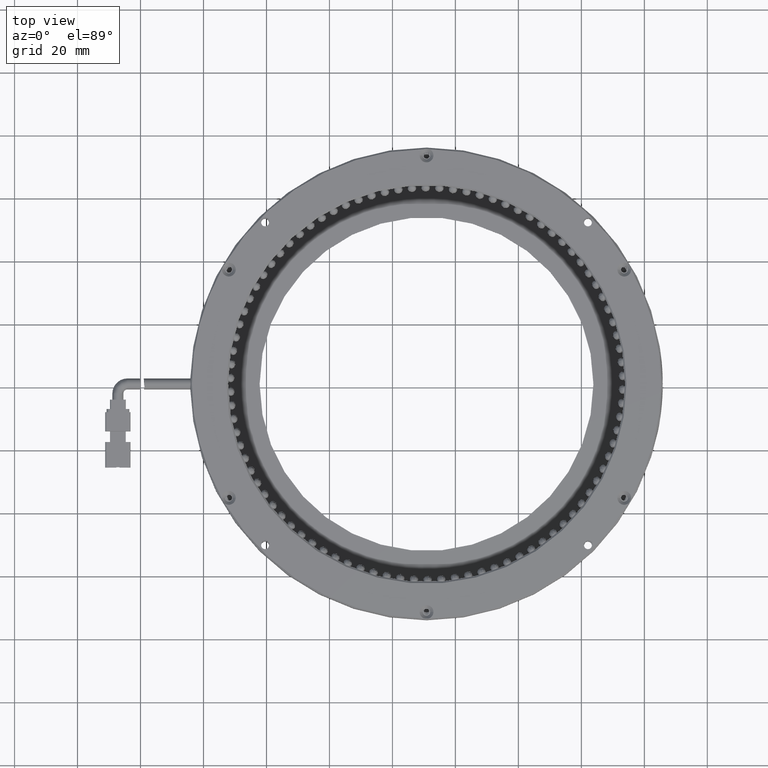
[diagram: clean part render]
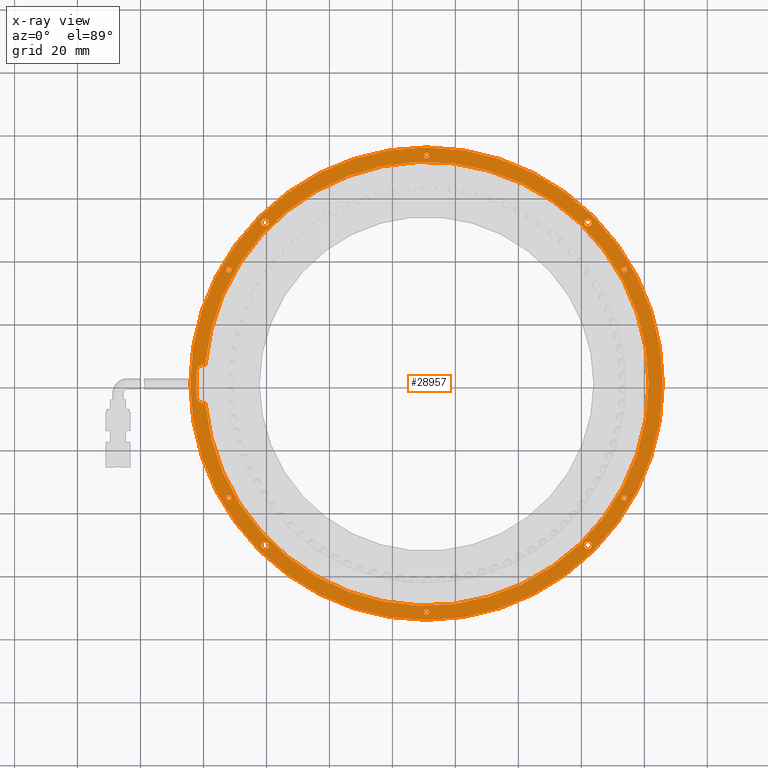
[diagram: x-ray — body ghosted, one internal face saturated and labeled with its STEP entity id]
A machine part, top view, then the same camera in x-ray: the body is ghosted and one INTERNAL B-rep face — a face not visible from any outside direction — is saturated and labeled: STEP entity #28957.
In plain terms, the highlighted planar face has unit normal (0, 0, 1).
Its self-contained STEP definition (entity closure, byte-faithful):
#242 = CARTESIAN_POINT ( 'NONE',  ( 73.60924025152871800, 37.34593908629515400, 3.499999999999937400 ) ) ;
#395 = CARTESIAN_POINT ( 'NONE',  ( 60.83764011318196200, 52.36118072231920500, 3.499999999999938700 ) ) ;
#875 = ORIENTED_EDGE ( 'NONE', *, *, #73624, .T. ) ;
#1308 = CARTESIAN_POINT ( 'NONE',  ( -41.69284315886687200, -50.16930254973072300, 3.499999999999938700 ) ) ;
#1927 = VERTEX_POINT ( 'NONE', #7664 ) ;
#2146 = DIRECTION ( 'NONE',  ( 0.0000000000000000000, 0.0000000000000000000, -1.000000000000000000 ) ) ;
#2436 = CIRCLE ( 'NONE', #72555, 0.9999999999999991100 ) ;
#2562 = DIRECTION ( 'NONE',  ( 0.0000000000000000000, 0.0000000000000000000, -1.000000000000000000 ) ) ;
#2760 = VERTEX_POINT ( 'NONE', #60874 ) ;
#3091 = FACE_BOUND ( 'NONE', #67830, .T. ) ;
#4112 = DIRECTION ( 'NONE',  ( 1.000000000000000000, 0.0000000000000000000, 0.0000000000000000000 ) ) ;
#4430 = CARTESIAN_POINT ( 'NONE',  ( 73.60924025152871800, 37.34593908629515400, 3.499999999999937400 ) ) ;
#4550 = EDGE_CURVE ( 'NONE', #16202, #41398, #28218, .T. ) ;
#4745 = VERTEX_POINT ( 'NONE', #42330 ) ;
#4763 = CIRCLE ( 'NONE', #9330, 2.000000000000001800 ) ;
#4840 = ORIENTED_EDGE ( 'NONE', *, *, #54595, .T. ) ;
#4952 = CARTESIAN_POINT ( 'NONE',  ( -41.69284315886760300, 52.36118072231883500, 3.499999999999938700 ) ) ;
#4963 = EDGE_LOOP ( 'NONE', ( #37913, #40842 ) ) ;
#5029 = FACE_BOUND ( 'NONE', #58446, .T. ) ;
#5240 = CARTESIAN_POINT ( 'NONE',  ( -39.19284315886690000, -50.16930254973072300, 3.499999999999938700 ) ) ;
#5724 = VECTOR ( 'NONE', #73314, 1000.000000000000000 ) ;
#5881 = EDGE_LOOP ( 'NONE', ( #9034, #46588 ) ) ;
#6335 = CIRCLE ( 'NONE', #38952, 1.249999999999987100 ) ;
#6372 = DIRECTION ( 'NONE',  ( 1.000000000000000000, 0.0000000000000000000, 0.0000000000000000000 ) ) ;
#6685 = CIRCLE ( 'NONE', #60077, 1.249999999999987100 ) ;
#6864 = VERTEX_POINT ( 'NONE', #46443 ) ;
#6956 = FACE_OUTER_BOUND ( 'NONE', #51454, .T. ) ;
#7664 = CARTESIAN_POINT ( 'NONE',  ( -62.17760152284265700, 4.988395143653201900, 3.499999999999937400 ) ) ;
#7688 = ORIENTED_EDGE ( 'NONE', *, *, #49355, .T. ) ;
#8373 = AXIS2_PLACEMENT_3D ( 'NONE', #29793, #72388, #35947 ) ;
#8474 = EDGE_CURVE ( 'NONE', #40038, #64313, #58484, .T. ) ;
#8633 = CARTESIAN_POINT ( 'NONE',  ( 10.82239847715786100, -71.40406091370557800, 3.499999999999937400 ) ) ;
#8886 = CARTESIAN_POINT ( 'NONE',  ( 10.82239847715735200, 1.095939086294420100, 3.499999999999937400 ) ) ;
#9025 = CARTESIAN_POINT ( 'NONE',  ( 81.32239847715736400, 1.095939086294420100, 3.499999999999937400 ) ) ;
#9034 = ORIENTED_EDGE ( 'NONE', *, *, #43669, .T. ) ;
#9330 = AXIS2_PLACEMENT_3D ( 'NONE', #30951, #73506, #37109 ) ;
#9441 = VERTEX_POINT ( 'NONE', #58798 ) ;
#9788 = AXIS2_PLACEMENT_3D ( 'NONE', #53809, #17362, #59953 ) ;
#10495 = DIRECTION ( 'NONE',  ( 1.000000000000000000, 0.0000000000000000000, 0.0000000000000000000 ) ) ;
#10811 = CARTESIAN_POINT ( 'NONE',  ( -39.19284315886763200, 52.36118072231883500, 3.499999999999938700 ) ) ;
#10985 = ORIENTED_EDGE ( 'NONE', *, *, #76837, .T. ) ;
#11159 = DIRECTION ( 'NONE',  ( 0.0000000000000000000, 0.0000000000000000000, -1.000000000000000000 ) ) ;
#11369 = AXIS2_PLACEMENT_3D ( 'NONE', #11418, #53979, #17530 ) ;
#11418 = CARTESIAN_POINT ( 'NONE',  ( 73.60924025152948500, -35.15406091370500300, 3.499999999999937400 ) ) ;
#11551 = EDGE_CURVE ( 'NONE', #4745, #43965, #6685, .T. ) ;
#11903 = AXIS2_PLACEMENT_3D ( 'NONE', #59918, #23455, #66000 ) ;
#12002 = ORIENTED_EDGE ( 'NONE', *, *, #51326, .T. ) ;
#12542 = DIRECTION ( 'NONE',  ( 0.0000000000000000000, 0.0000000000000000000, -1.000000000000000000 ) ) ;
#12600 = CARTESIAN_POINT ( 'NONE',  ( -62.17760152284264300, -3.011604856346799400, 3.499999999999937400 ) ) ;
#12740 = CARTESIAN_POINT ( 'NONE',  ( -40.44284315886688600, -50.16930254973072300, 3.499999999999938700 ) ) ;
#12984 = VERTEX_POINT ( 'NONE', #4952 ) ;
#13241 = CARTESIAN_POINT ( 'NONE',  ( 9.822398477157861400, -71.40406091370557800, 3.499999999999937400 ) ) ;
#13413 = CIRCLE ( 'NONE', #67202, 75.00000000000001400 ) ;
#14102 = CARTESIAN_POINT ( 'NONE',  ( 72.60924025152871800, 37.34593908629515400, 3.499999999999937400 ) ) ;
#14316 = CIRCLE ( 'NONE', #72203, 1.000000000000000900 ) ;
#14355 = CARTESIAN_POINT ( 'NONE',  ( 9.822398477157351600, 73.59593908629442200, 3.499999999999937400 ) ) ;
#14465 = CARTESIAN_POINT ( 'NONE',  ( -60.17760152284265700, -5.011604856346799900, 3.499999999999937400 ) ) ;
#14702 = EDGE_LOOP ( 'NONE', ( #48172, #875 ) ) ;
#14742 = DIRECTION ( 'NONE',  ( 1.000000000000000000, 0.0000000000000000000, 0.0000000000000000000 ) ) ;
#15011 = DIRECTION ( 'NONE',  ( 1.000000000000000000, 0.0000000000000000000, 0.0000000000000000000 ) ) ;
#15058 = VERTEX_POINT ( 'NONE', #36847 ) ;
#15212 = DIRECTION ( 'NONE',  ( 0.0000000000000000000, 0.0000000000000000000, -1.000000000000000000 ) ) ;
#15767 = VERTEX_POINT ( 'NONE', #51642 ) ;
#15853 = DIRECTION ( 'NONE',  ( 0.0000000000000000000, 0.0000000000000000000, -1.000000000000000000 ) ) ;
#15897 = CIRCLE ( 'NONE', #61323, 1.000000000000000900 ) ;
#16202 = VERTEX_POINT ( 'NONE', #1308 ) ;
#16246 = CARTESIAN_POINT ( 'NONE',  ( 10.82239847715735200, 1.095939086294420100, 3.499999999999937400 ) ) ;
#16734 = CARTESIAN_POINT ( 'NONE',  ( 62.08764011318267300, -50.16930254972964300, 3.499999999999938700 ) ) ;
#16890 = CARTESIAN_POINT ( 'NONE',  ( 10.82239847715735200, 1.095939086294420100, 3.499999999999937400 ) ) ;
#17362 = DIRECTION ( 'NONE',  ( 0.0000000000000000000, 0.0000000000000000000, -1.000000000000000000 ) ) ;
#17530 = DIRECTION ( 'NONE',  ( 1.000000000000000000, 0.0000000000000000000, 0.0000000000000000000 ) ) ;
#17623 = EDGE_CURVE ( 'NONE', #66327, #15058, #70197, .T. ) ;
#18307 = EDGE_LOOP ( 'NONE', ( #64291, #32755 ) ) ;
#18326 = ORIENTED_EDGE ( 'NONE', *, *, #66112, .T. ) ;
#18660 = CARTESIAN_POINT ( 'NONE',  ( 74.60924025152871800, 37.34593908629515400, 3.499999999999937400 ) ) ;
#18893 = EDGE_CURVE ( 'NONE', #12984, #34307, #78845, .T. ) ;
#18909 = DIRECTION ( 'NONE',  ( 1.000000000000000000, 0.0000000000000000000, 0.0000000000000000000 ) ) ;
#19221 = CARTESIAN_POINT ( 'NONE',  ( 62.08764011318194800, 52.36118072231920500, 3.499999999999938700 ) ) ;
#19312 = FACE_BOUND ( 'NONE', #56768, .T. ) ;
#20494 = VECTOR ( 'NONE', #53495, 1000.000000000000000 ) ;
#20681 = DIRECTION ( 'NONE',  ( 0.0000000000000000000, 0.0000000000000000000, -1.000000000000000000 ) ) ;
#20835 = EDGE_LOOP ( 'NONE', ( #33312, #46964 ) ) ;
#21215 = FACE_BOUND ( 'NONE', #50374, .T. ) ;
#21395 = CIRCLE ( 'NONE', #38529, 1.249999999999987100 ) ;
#22219 = DIRECTION ( 'NONE',  ( 0.0000000000000000000, 0.0000000000000000000, -1.000000000000000000 ) ) ;
#22268 = ORIENTED_EDGE ( 'NONE', *, *, #8474, .T. ) ;
#22382 = LINE ( 'NONE', #47394, #20494 ) ;
#22394 = DIRECTION ( 'NONE',  ( 1.000000000000000000, 0.0000000000000000000, 0.0000000000000000000 ) ) ;
#22882 = DIRECTION ( 'NONE',  ( 1.000000000000000000, 0.0000000000000000000, 0.0000000000000000000 ) ) ;
#23025 = DIRECTION ( 'NONE',  ( 1.000000000000000000, 0.0000000000000000000, -0.0000000000000000000 ) ) ;
#23045 = ORIENTED_EDGE ( 'NONE', *, *, #29507, .T. ) ;
#23455 = DIRECTION ( 'NONE',  ( 0.0000000000000000000, 0.0000000000000000000, 1.000000000000000000 ) ) ;
#23703 = EDGE_CURVE ( 'NONE', #55862, #52684, #15897, .T. ) ;
#23802 = AXIS2_PLACEMENT_3D ( 'NONE', #12740, #55326, #18909 ) ;
#24147 = DIRECTION ( 'NONE',  ( 0.0000000000000000000, 0.0000000000000000000, -1.000000000000000000 ) ) ;
#24706 = CARTESIAN_POINT ( 'NONE',  ( 74.60924025152948500, -35.15406091370500300, 3.499999999999937400 ) ) ;
#25315 = DIRECTION ( 'NONE',  ( 1.000000000000000000, 0.0000000000000000000, 0.0000000000000000000 ) ) ;
#25379 = CIRCLE ( 'NONE', #43445, 1.000000000000000900 ) ;
#25594 = CIRCLE ( 'NONE', #62780, 0.9999999999999991100 ) ;
#25666 = CIRCLE ( 'NONE', #11903, 75.00000000000001400 ) ;
#26547 = EDGE_LOOP ( 'NONE', ( #10985, #7688 ) ) ;
#26795 = CARTESIAN_POINT ( 'NONE',  ( 72.60924025152948500, -35.15406091370500300, 3.499999999999937400 ) ) ;
#28146 = CIRCLE ( 'NONE', #30666, 70.50000000000000000 ) ;
#28218 = CIRCLE ( 'NONE', #61388, 1.249999999999987100 ) ;
#28421 = EDGE_CURVE ( 'NONE', #15767, #41753, #36216, .T. ) ;
#28925 = EDGE_CURVE ( 'NONE', #52684, #55862, #71632, .T. ) ;
#28957 = ADVANCED_FACE ( 'NONE', ( #6956, #53564, #39226, #37368, #21215, #69729, #5029, #67818, #51637, #35424, #19312, #3091 ), #71419, .T. ) ;
#29507 = EDGE_CURVE ( 'NONE', #64313, #1927, #54241, .T. ) ;
#29693 = DIRECTION ( 'NONE',  ( 1.000000000000000000, 0.0000000000000000000, -0.0000000000000000000 ) ) ;
#29793 = CARTESIAN_POINT ( 'NONE',  ( 73.60924025152948500, -35.15406091370500300, 3.499999999999937400 ) ) ;
#30175 = CIRCLE ( 'NONE', #44544, 1.249999999999987100 ) ;
#30310 = CARTESIAN_POINT ( 'NONE',  ( 10.82239847715735200, 1.095939086294420100, 3.499999999999937400 ) ) ;
#30322 = EDGE_CURVE ( 'NONE', #43965, #4745, #6335, .T. ) ;
#30666 = AXIS2_PLACEMENT_3D ( 'NONE', #16246, #58831, #22394 ) ;
#30951 = CARTESIAN_POINT ( 'NONE',  ( -60.17760152284265700, 4.988395143653201900, 3.499999999999937400 ) ) ;
#31159 = AXIS2_PLACEMENT_3D ( 'NONE', #4430, #46969, #10495 ) ;
#31260 = ORIENTED_EDGE ( 'NONE', *, *, #23703, .T. ) ;
#31718 = CIRCLE ( 'NONE', #23802, 1.249999999999987100 ) ;
#32552 = AXIS2_PLACEMENT_3D ( 'NONE', #38557, #2146, #44736 ) ;
#32755 = ORIENTED_EDGE ( 'NONE', *, *, #30322, .T. ) ;
#32970 = EDGE_CURVE ( 'NONE', #2760, #54807, #25594, .T. ) ;
#33312 = ORIENTED_EDGE ( 'NONE', *, *, #59984, .T. ) ;
#33393 = CIRCLE ( 'NONE', #11369, 1.000000000000000900 ) ;
#33589 = EDGE_CURVE ( 'NONE', #74757, #65528, #28146, .T. ) ;
#33855 = EDGE_LOOP ( 'NONE', ( #18326, #42496 ) ) ;
#33864 = ORIENTED_EDGE ( 'NONE', *, *, #60349, .T. ) ;
#34236 = AXIS2_PLACEMENT_3D ( 'NONE', #52312, #15853, #58420 ) ;
#34261 = CARTESIAN_POINT ( 'NONE',  ( -51.96444329721453000, 37.34593908629427300, 3.499999999999937400 ) ) ;
#34307 = VERTEX_POINT ( 'NONE', #10811 ) ;
#34501 = EDGE_CURVE ( 'NONE', #60751, #70568, #25379, .T. ) ;
#35424 = FACE_BOUND ( 'NONE', #33855, .T. ) ;
#35471 = DIRECTION ( 'NONE',  ( 0.0000000000000000000, 0.0000000000000000000, -1.000000000000000000 ) ) ;
#35947 = DIRECTION ( 'NONE',  ( 1.000000000000000000, 0.0000000000000000000, 0.0000000000000000000 ) ) ;
#36216 = CIRCLE ( 'NONE', #37236, 1.000000000000000900 ) ;
#36461 = DIRECTION ( 'NONE',  ( -1.000000000000000000, 0.0000000000000000000, 0.0000000000000000000 ) ) ;
#36847 = CARTESIAN_POINT ( 'NONE',  ( -59.43092145586856400, 6.988395143653203700, 3.499999999999937400 ) ) ;
#36958 = ORIENTED_EDGE ( 'NONE', *, *, #78341, .T. ) ;
#37109 = DIRECTION ( 'NONE',  ( -1.000000000000000000, 0.0000000000000000000, 0.0000000000000000000 ) ) ;
#37131 = EDGE_CURVE ( 'NONE', #15058, #74757, #56031, .T. ) ;
#37236 = AXIS2_PLACEMENT_3D ( 'NONE', #34261, #76807, #40325 ) ;
#37368 = FACE_BOUND ( 'NONE', #14702, .T. ) ;
#37834 = VECTOR ( 'NONE', #29693, 1000.000000000000000 ) ;
#37874 = CARTESIAN_POINT ( 'NONE',  ( -64.17760152284266400, 1.095939086294420100, 3.499999999999937400 ) ) ;
#37913 = ORIENTED_EDGE ( 'NONE', *, *, #39089, .T. ) ;
#38506 = CARTESIAN_POINT ( 'NONE',  ( -60.17760152284265700, 6.988395143653201900, 3.499999999999937400 ) ) ;
#38529 = AXIS2_PLACEMENT_3D ( 'NONE', #16734, #59305, #22882 ) ;
#38557 = CARTESIAN_POINT ( 'NONE',  ( -40.44284315886761800, 52.36118072231883500, 3.499999999999938700 ) ) ;
#38766 = EDGE_CURVE ( 'NONE', #54807, #2760, #49796, .T. ) ;
#38952 = AXIS2_PLACEMENT_3D ( 'NONE', #51660, #15212, #57786 ) ;
#38989 = CARTESIAN_POINT ( 'NONE',  ( -51.96444329721429500, -35.15406091370587700, 3.499999999999937400 ) ) ;
#39089 = EDGE_CURVE ( 'NONE', #34307, #12984, #30175, .T. ) ;
#39226 = FACE_BOUND ( 'NONE', #20835, .T. ) ;
#39273 = AXIS2_PLACEMENT_3D ( 'NONE', #60626, #24147, #66718 ) ;
#39575 = EDGE_CURVE ( 'NONE', #70049, #42000, #2436, .T. ) ;
#39847 = CARTESIAN_POINT ( 'NONE',  ( -52.96444329721429500, -35.15406091370587700, 3.499999999999937400 ) ) ;
#39954 = CARTESIAN_POINT ( 'NONE',  ( -50.96444329721453000, 37.34593908629427300, 3.499999999999937400 ) ) ;
#40038 = VERTEX_POINT ( 'NONE', #14465 ) ;
#40325 = DIRECTION ( 'NONE',  ( 1.000000000000000000, 0.0000000000000000000, 0.0000000000000000000 ) ) ;
#40452 = DIRECTION ( 'NONE',  ( 0.0000000000000000000, 0.0000000000000000000, -1.000000000000000000 ) ) ;
#40840 = AXIS2_PLACEMENT_3D ( 'NONE', #8633, #51212, #14742 ) ;
#40842 = ORIENTED_EDGE ( 'NONE', *, *, #18893, .T. ) ;
#40979 = CARTESIAN_POINT ( 'NONE',  ( -50.96444329721429500, -35.15406091370587700, 3.499999999999937400 ) ) ;
#41398 = VERTEX_POINT ( 'NONE', #5240 ) ;
#41753 = VERTEX_POINT ( 'NONE', #39954 ) ;
#41799 = ORIENTED_EDGE ( 'NONE', *, *, #64734, .T. ) ;
#42000 = VERTEX_POINT ( 'NONE', #54072 ) ;
#42330 = CARTESIAN_POINT ( 'NONE',  ( 63.33764011318193400, 52.36118072231920500, 3.499999999999938700 ) ) ;
#42496 = ORIENTED_EDGE ( 'NONE', *, *, #4550, .T. ) ;
#42792 = DIRECTION ( 'NONE',  ( 0.0000000000000000000, 0.0000000000000000000, -1.000000000000000000 ) ) ;
#43325 = VERTEX_POINT ( 'NONE', #24706 ) ;
#43445 = AXIS2_PLACEMENT_3D ( 'NONE', #38989, #2562, #45144 ) ;
#43669 = EDGE_CURVE ( 'NONE', #42000, #70049, #58353, .T. ) ;
#43791 = ORIENTED_EDGE ( 'NONE', *, *, #17623, .T. ) ;
#43965 = VERTEX_POINT ( 'NONE', #395 ) ;
#44544 = AXIS2_PLACEMENT_3D ( 'NONE', #49030, #12542, #55136 ) ;
#44736 = DIRECTION ( 'NONE',  ( 1.000000000000000000, 0.0000000000000000000, 0.0000000000000000000 ) ) ;
#44920 = ORIENTED_EDGE ( 'NONE', *, *, #38766, .T. ) ;
#45144 = DIRECTION ( 'NONE',  ( 1.000000000000000000, 0.0000000000000000000, 0.0000000000000000000 ) ) ;
#46443 = CARTESIAN_POINT ( 'NONE',  ( 85.82239847715736400, 1.095939086294429400, 3.499999999999937400 ) ) ;
#46582 = VERTEX_POINT ( 'NONE', #37874 ) ;
#46588 = ORIENTED_EDGE ( 'NONE', *, *, #39575, .T. ) ;
#46964 = ORIENTED_EDGE ( 'NONE', *, *, #28421, .T. ) ;
#46969 = DIRECTION ( 'NONE',  ( 0.0000000000000000000, 0.0000000000000000000, -1.000000000000000000 ) ) ;
#47090 = ORIENTED_EDGE ( 'NONE', *, *, #28925, .T. ) ;
#47394 = CARTESIAN_POINT ( 'NONE',  ( -62.17760152284264300, -5.011604856346799000, 3.499999999999937400 ) ) ;
#47640 = CARTESIAN_POINT ( 'NONE',  ( 10.82239847715735000, 73.59593908629442200, 3.499999999999937400 ) ) ;
#47868 = ORIENTED_EDGE ( 'NONE', *, *, #32970, .T. ) ;
#47890 = VERTEX_POINT ( 'NONE', #49525 ) ;
#48172 = ORIENTED_EDGE ( 'NONE', *, *, #34501, .T. ) ;
#49030 = CARTESIAN_POINT ( 'NONE',  ( -40.44284315886761800, 52.36118072231883500, 3.499999999999938700 ) ) ;
#49355 = EDGE_CURVE ( 'NONE', #72587, #43325, #71240, .T. ) ;
#49525 = CARTESIAN_POINT ( 'NONE',  ( 63.33764011318265800, -50.16930254972964300, 3.499999999999938700 ) ) ;
#49796 = CIRCLE ( 'NONE', #40840, 0.9999999999999991100 ) ;
#50374 = EDGE_LOOP ( 'NONE', ( #47868, #44920 ) ) ;
#51212 = DIRECTION ( 'NONE',  ( 0.0000000000000000000, 0.0000000000000000000, -1.000000000000000000 ) ) ;
#51326 = EDGE_CURVE ( 'NONE', #6864, #46582, #13413, .T. ) ;
#51454 = EDGE_LOOP ( 'NONE', ( #41799, #12002 ) ) ;
#51472 = DIRECTION ( 'NONE',  ( 0.0000000000000000000, 0.0000000000000000000, -1.000000000000000000 ) ) ;
#51637 = FACE_BOUND ( 'NONE', #4963, .T. ) ;
#51642 = CARTESIAN_POINT ( 'NONE',  ( -52.96444329721453000, 37.34593908629427300, 3.499999999999937400 ) ) ;
#51660 = CARTESIAN_POINT ( 'NONE',  ( 62.08764011318194800, 52.36118072231920500, 3.499999999999938700 ) ) ;
#52312 = CARTESIAN_POINT ( 'NONE',  ( 10.82239847715735000, 73.59593908629442200, 3.499999999999937400 ) ) ;
#52684 = VERTEX_POINT ( 'NONE', #18660 ) ;
#53495 = DIRECTION ( 'NONE',  ( -1.000000000000000000, -0.0000000000000000000, -0.0000000000000000000 ) ) ;
#53564 = FACE_BOUND ( 'NONE', #5881, .T. ) ;
#53722 = DIRECTION ( 'NONE',  ( 1.000000000000000000, 0.0000000000000000000, 0.0000000000000000000 ) ) ;
#53809 = CARTESIAN_POINT ( 'NONE',  ( -51.96444329721453000, 37.34593908629427300, 3.499999999999937400 ) ) ;
#53979 = DIRECTION ( 'NONE',  ( 0.0000000000000000000, 0.0000000000000000000, -1.000000000000000000 ) ) ;
#54072 = CARTESIAN_POINT ( 'NONE',  ( 11.82239847715735000, 73.59593908629442200, 3.499999999999937400 ) ) ;
#54241 = LINE ( 'NONE', #67218, #5724 ) ;
#54595 = EDGE_CURVE ( 'NONE', #9441, #47890, #21395, .T. ) ;
#54807 = VERTEX_POINT ( 'NONE', #13241 ) ;
#55136 = DIRECTION ( 'NONE',  ( 1.000000000000000000, 0.0000000000000000000, 0.0000000000000000000 ) ) ;
#55326 = DIRECTION ( 'NONE',  ( 0.0000000000000000000, 0.0000000000000000000, -1.000000000000000000 ) ) ;
#55671 = ORIENTED_EDGE ( 'NONE', *, *, #58791, .T. ) ;
#55862 = VERTEX_POINT ( 'NONE', #14102 ) ;
#56031 = CIRCLE ( 'NONE', #59101, 70.50000000000000000 ) ;
#56768 = EDGE_LOOP ( 'NONE', ( #36958, #4840 ) ) ;
#57096 = CARTESIAN_POINT ( 'NONE',  ( -51.96444329721429500, -35.15406091370587700, 3.499999999999937400 ) ) ;
#57786 = DIRECTION ( 'NONE',  ( 1.000000000000000000, 0.0000000000000000000, 0.0000000000000000000 ) ) ;
#58353 = CIRCLE ( 'NONE', #34236, 0.9999999999999991100 ) ;
#58420 = DIRECTION ( 'NONE',  ( 1.000000000000000000, 0.0000000000000000000, 0.0000000000000000000 ) ) ;
#58446 = EDGE_LOOP ( 'NONE', ( #47090, #31260 ) ) ;
#58484 = CIRCLE ( 'NONE', #39273, 2.000000000000001800 ) ;
#58659 = CARTESIAN_POINT ( 'NONE',  ( 10.82239847715786100, -71.40406091370557800, 3.499999999999937400 ) ) ;
#58791 = EDGE_CURVE ( 'NONE', #65528, #40038, #22382, .T. ) ;
#58798 = CARTESIAN_POINT ( 'NONE',  ( 60.83764011318268700, -50.16930254972964300, 3.499999999999938700 ) ) ;
#58831 = DIRECTION ( 'NONE',  ( 0.0000000000000000000, 0.0000000000000000000, -1.000000000000000000 ) ) ;
#59101 = AXIS2_PLACEMENT_3D ( 'NONE', #8886, #51472, #15011 ) ;
#59305 = DIRECTION ( 'NONE',  ( 0.0000000000000000000, 0.0000000000000000000, -1.000000000000000000 ) ) ;
#59450 = DIRECTION ( 'NONE',  ( 0.0000000000000000000, 0.0000000000000000000, 1.000000000000000000 ) ) ;
#59918 = CARTESIAN_POINT ( 'NONE',  ( 10.82239847715735200, 1.095939086294420100, 3.499999999999937400 ) ) ;
#59953 = DIRECTION ( 'NONE',  ( 1.000000000000000000, 0.0000000000000000000, 0.0000000000000000000 ) ) ;
#59984 = EDGE_CURVE ( 'NONE', #41753, #15767, #70410, .T. ) ;
#60077 = AXIS2_PLACEMENT_3D ( 'NONE', #19221, #61785, #25315 ) ;
#60349 = EDGE_CURVE ( 'NONE', #1927, #66327, #4763, .T. ) ;
#60626 = CARTESIAN_POINT ( 'NONE',  ( -60.17760152284265700, -3.011604856346799400, 3.499999999999937400 ) ) ;
#60751 = VERTEX_POINT ( 'NONE', #40979 ) ;
#60874 = CARTESIAN_POINT ( 'NONE',  ( 11.82239847715786000, -71.40406091370557800, 3.499999999999937400 ) ) ;
#61323 = AXIS2_PLACEMENT_3D ( 'NONE', #242, #42792, #6372 ) ;
#61388 = AXIS2_PLACEMENT_3D ( 'NONE', #76930, #40452, #4112 ) ;
#61785 = DIRECTION ( 'NONE',  ( 0.0000000000000000000, 0.0000000000000000000, -1.000000000000000000 ) ) ;
#62586 = ORIENTED_EDGE ( 'NONE', *, *, #33589, .T. ) ;
#62780 = AXIS2_PLACEMENT_3D ( 'NONE', #58659, #22219, #64763 ) ;
#63202 = DIRECTION ( 'NONE',  ( 1.000000000000000000, 0.0000000000000000000, 0.0000000000000000000 ) ) ;
#63606 = CIRCLE ( 'NONE', #68099, 1.249999999999987100 ) ;
#63797 = AXIS2_PLACEMENT_3D ( 'NONE', #16890, #59450, #23025 ) ;
#64291 = ORIENTED_EDGE ( 'NONE', *, *, #11551, .T. ) ;
#64313 = VERTEX_POINT ( 'NONE', #12600 ) ;
#64734 = EDGE_CURVE ( 'NONE', #46582, #6864, #25666, .T. ) ;
#64763 = DIRECTION ( 'NONE',  ( 1.000000000000000000, 0.0000000000000000000, 0.0000000000000000000 ) ) ;
#65528 = VERTEX_POINT ( 'NONE', #66052 ) ;
#66000 = DIRECTION ( 'NONE',  ( -1.000000000000000000, 0.0000000000000000000, 0.0000000000000000000 ) ) ;
#66052 = CARTESIAN_POINT ( 'NONE',  ( -59.41254942620987100, -5.011604856346798100, 3.499999999999937400 ) ) ;
#66112 = EDGE_CURVE ( 'NONE', #41398, #16202, #31718, .T. ) ;
#66327 = VERTEX_POINT ( 'NONE', #38506 ) ;
#66718 = DIRECTION ( 'NONE',  ( -1.000000000000000000, 0.0000000000000000000, 0.0000000000000000000 ) ) ;
#67202 = AXIS2_PLACEMENT_3D ( 'NONE', #30310, #72895, #36461 ) ;
#67218 = CARTESIAN_POINT ( 'NONE',  ( -62.17760152284264300, 1.095939086294420100, 3.499999999999937400 ) ) ;
#67818 = FACE_BOUND ( 'NONE', #18307, .T. ) ;
#67830 = EDGE_LOOP ( 'NONE', ( #23045, #33864, #43791, #68872, #62586, #55671, #22268 ) ) ;
#68099 = AXIS2_PLACEMENT_3D ( 'NONE', #71924, #35471, #78046 ) ;
#68872 = ORIENTED_EDGE ( 'NONE', *, *, #37131, .T. ) ;
#69729 = FACE_BOUND ( 'NONE', #26547, .T. ) ;
#70049 = VERTEX_POINT ( 'NONE', #14355 ) ;
#70197 = LINE ( 'NONE', #72531, #37834 ) ;
#70410 = CIRCLE ( 'NONE', #9788, 1.000000000000000900 ) ;
#70568 = VERTEX_POINT ( 'NONE', #39847 ) ;
#71240 = CIRCLE ( 'NONE', #8373, 1.000000000000000900 ) ;
#71419 = PLANE ( 'NONE',  #63797 ) ;
#71632 = CIRCLE ( 'NONE', #31159, 1.000000000000000900 ) ;
#71924 = CARTESIAN_POINT ( 'NONE',  ( 62.08764011318267300, -50.16930254972964300, 3.499999999999938700 ) ) ;
#72203 = AXIS2_PLACEMENT_3D ( 'NONE', #57096, #20681, #63202 ) ;
#72388 = DIRECTION ( 'NONE',  ( 0.0000000000000000000, 0.0000000000000000000, -1.000000000000000000 ) ) ;
#72531 = CARTESIAN_POINT ( 'NONE',  ( -57.93513150267762100, 6.988395143653201000, 3.499999999999937400 ) ) ;
#72555 = AXIS2_PLACEMENT_3D ( 'NONE', #47640, #11159, #53722 ) ;
#72587 = VERTEX_POINT ( 'NONE', #26795 ) ;
#72895 = DIRECTION ( 'NONE',  ( 0.0000000000000000000, 0.0000000000000000000, 1.000000000000000000 ) ) ;
#73314 = DIRECTION ( 'NONE',  ( -0.0000000000000000000, 1.000000000000000000, 0.0000000000000000000 ) ) ;
#73506 = DIRECTION ( 'NONE',  ( 0.0000000000000000000, 0.0000000000000000000, -1.000000000000000000 ) ) ;
#73624 = EDGE_CURVE ( 'NONE', #70568, #60751, #14316, .T. ) ;
#74757 = VERTEX_POINT ( 'NONE', #9025 ) ;
#76807 = DIRECTION ( 'NONE',  ( 0.0000000000000000000, 0.0000000000000000000, -1.000000000000000000 ) ) ;
#76837 = EDGE_CURVE ( 'NONE', #43325, #72587, #33393, .T. ) ;
#76930 = CARTESIAN_POINT ( 'NONE',  ( -40.44284315886688600, -50.16930254973072300, 3.499999999999938700 ) ) ;
#78046 = DIRECTION ( 'NONE',  ( 1.000000000000000000, 0.0000000000000000000, 0.0000000000000000000 ) ) ;
#78341 = EDGE_CURVE ( 'NONE', #47890, #9441, #63606, .T. ) ;
#78845 = CIRCLE ( 'NONE', #32552, 1.249999999999987100 ) ;